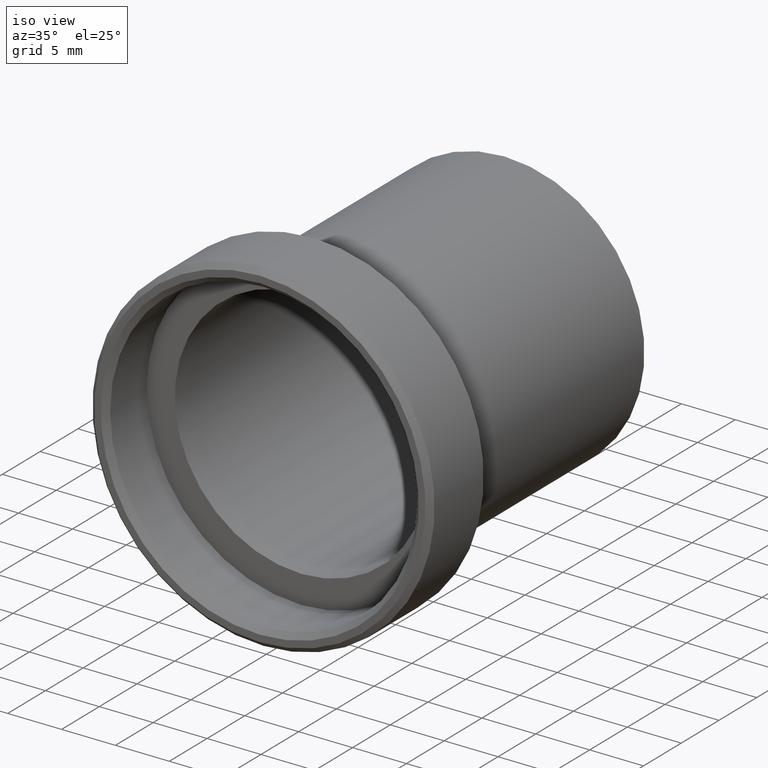
[diagram: clean part render]
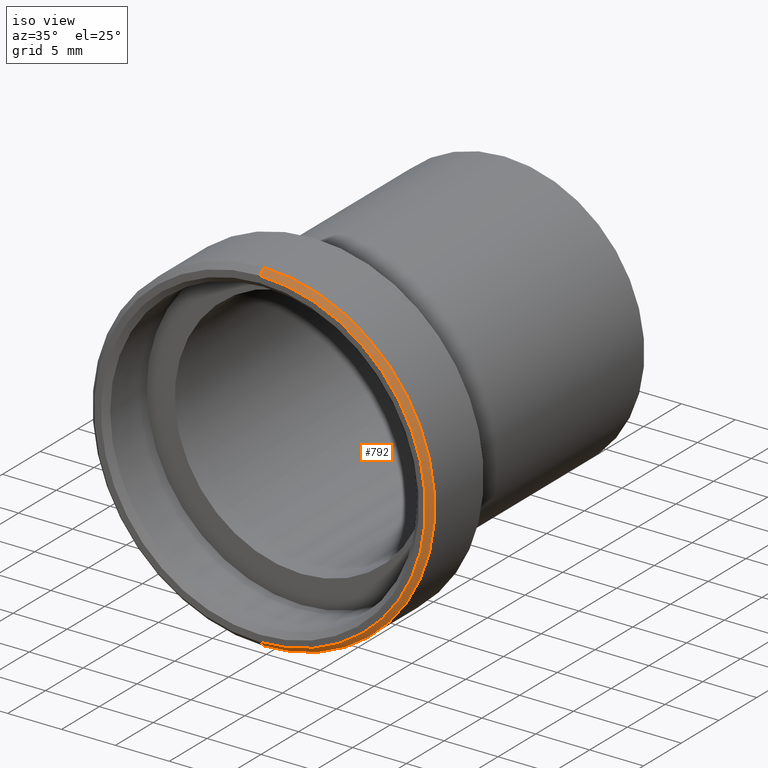
[diagram: same view with one face highlighted and labeled with its STEP entity id]
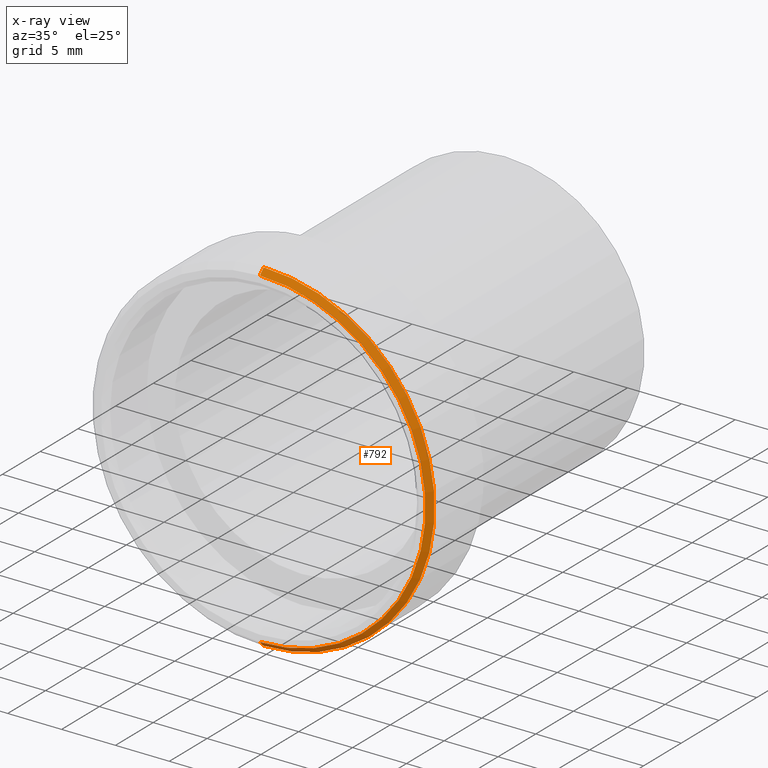
[diagram: x-ray of the same camera — body ghosted, the highlighted face saturated]
A machine part, iso view. The second image highlights one B-rep face of the part: STEP entity #792.
The next image is the same camera in x-ray: the body ghosted, the highlighted face saturated — about 0% of this face is hidden behind the body in this view.
In plain terms, the highlighted conical surface has half-angle 45 deg.
Its self-contained STEP definition (entity closure, byte-faithful):
#17 = CARTESIAN_POINT ( 'NONE',  ( 0.0000000000000000000, -5.857145825433105000, 0.0000000000000000000 ) ) ;
#75 = CARTESIAN_POINT ( 'NONE',  ( 1.944126793646423600E-015, -5.357145825433104100, -15.87500000000000400 ) ) ;
#79 = AXIS2_PLACEMENT_3D ( 'NONE', #17, #213, #703 ) ;
#81 = CIRCLE ( 'NONE', #542, 15.87500000000000400 ) ;
#82 = CONICAL_SURFACE ( 'NONE', #79, 15.37500000000000400, 0.7853981633974482800 ) ;
#111 = DIRECTION ( 'NONE',  ( -0.0000000000000000000, 1.000000000000000000, -0.0000000000000000000 ) ) ;
#149 = CIRCLE ( 'NONE', #410, 15.37500000000000400 ) ;
#150 = VERTEX_POINT ( 'NONE', #731 ) ;
#166 = EDGE_LOOP ( 'NONE', ( #556, #445, #209, #456 ) ) ;
#209 = ORIENTED_EDGE ( 'NONE', *, *, #352, .F. ) ;
#213 = DIRECTION ( 'NONE',  ( -0.0000000000000000000, 1.000000000000000000, -0.0000000000000000000 ) ) ;
#218 = VECTOR ( 'NONE', #884, 1000.000000000000000 ) ;
#229 = LINE ( 'NONE', #391, #218 ) ;
#255 = DIRECTION ( 'NONE',  ( 8.659560562354931600E-017, 0.7071067811865475700, -0.7071067811865474600 ) ) ;
#261 = CARTESIAN_POINT ( 'NONE',  ( 1.882894453689056100E-015, -5.857145825433105000, -15.37500000000000400 ) ) ;
#342 = EDGE_CURVE ( 'NONE', #783, #150, #149, .T. ) ;
#352 = EDGE_CURVE ( 'NONE', #512, #682, #81, .T. ) ;
#391 = CARTESIAN_POINT ( 'NONE',  ( 0.0000000000000000000, -5.857145825433105000, 15.37500000000000400 ) ) ;
#398 = CARTESIAN_POINT ( 'NONE',  ( 0.0000000000000000000, -5.357145825433104100, 15.87500000000000400 ) ) ;
#410 = AXIS2_PLACEMENT_3D ( 'NONE', #518, #598, #454 ) ;
#424 = LINE ( 'NONE', #261, #634 ) ;
#429 = EDGE_CURVE ( 'NONE', #150, #682, #424, .T. ) ;
#445 = ORIENTED_EDGE ( 'NONE', *, *, #429, .T. ) ;
#454 = DIRECTION ( 'NONE',  ( 0.0000000000000000000, 0.0000000000000000000, 1.000000000000000000 ) ) ;
#456 = ORIENTED_EDGE ( 'NONE', *, *, #475, .F. ) ;
#475 = EDGE_CURVE ( 'NONE', #783, #512, #229, .T. ) ;
#512 = VERTEX_POINT ( 'NONE', #398 ) ;
#516 = DIRECTION ( 'NONE',  ( 0.0000000000000000000, 0.0000000000000000000, 1.000000000000000000 ) ) ;
#518 = CARTESIAN_POINT ( 'NONE',  ( 0.0000000000000000000, -5.857145825433105000, 0.0000000000000000000 ) ) ;
#522 = CARTESIAN_POINT ( 'NONE',  ( 0.0000000000000000000, -5.357145825433104100, 0.0000000000000000000 ) ) ;
#542 = AXIS2_PLACEMENT_3D ( 'NONE', #522, #111, #516 ) ;
#556 = ORIENTED_EDGE ( 'NONE', *, *, #342, .T. ) ;
#598 = DIRECTION ( 'NONE',  ( -0.0000000000000000000, 1.000000000000000000, -0.0000000000000000000 ) ) ;
#634 = VECTOR ( 'NONE', #255, 1000.000000000000000 ) ;
#682 = VERTEX_POINT ( 'NONE', #75 ) ;
#699 = FACE_OUTER_BOUND ( 'NONE', #166, .T. ) ;
#703 = DIRECTION ( 'NONE',  ( 0.0000000000000000000, 0.0000000000000000000, 1.000000000000000000 ) ) ;
#731 = CARTESIAN_POINT ( 'NONE',  ( 1.913510623667739800E-015, -5.857145825433105000, -15.37500000000000400 ) ) ;
#783 = VERTEX_POINT ( 'NONE', #847 ) ;
#792 = ADVANCED_FACE ( 'NONE', ( #699 ), #82, .T. ) ;
#847 = CARTESIAN_POINT ( 'NONE',  ( 0.0000000000000000000, -5.857145825433105000, 15.37500000000000400 ) ) ;
#884 = DIRECTION ( 'NONE',  ( 0.0000000000000000000, 0.7071067811865475700, 0.7071067811865474600 ) ) ;